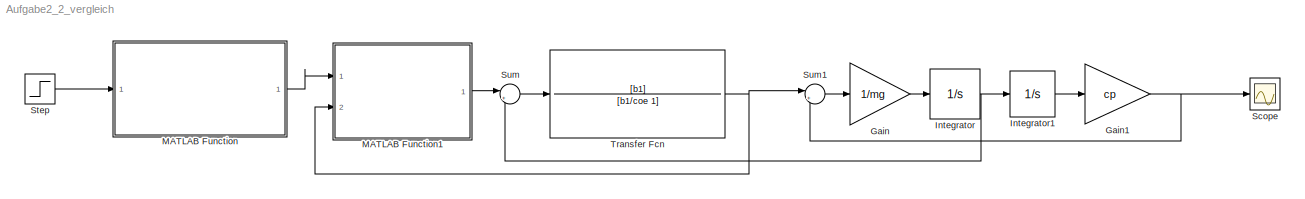
MODEL Aufgabe2_2_vergleich
KIND model
CONFIG InitFcn = run('Auf2_1_Initialisierung.m') % Initialisierung
BLOCK [Gain] Gain
  Gain = 1/mg
  OutDataTypeStr = Inherit: Inherit via internal rule
  ParamDataTypeStr = Inherit: Inherit via internal rule
  SID = 15
  SaturateOnIntegerOverflow = off
BLOCK [Gain] Gain1
  Gain = cp
  OutDataTypeStr = Inherit: Inherit via internal rule
  ParamDataTypeStr = Inherit: Inherit via internal rule
  SID = 18
  SaturateOnIntegerOverflow = off
BLOCK [Integrator] Integrator
  Ports = [1, 1]
  SID = 16
BLOCK [Integrator] Integrator1
  Ports = [1, 1]
  SID = 17
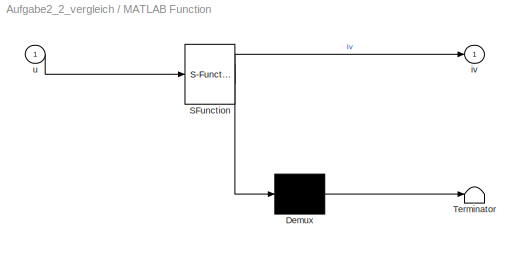
BLOCK [SubSystem] MATLAB Function
  ErrorFcn = Stateflow.Translate.translate
  PermitHierarchicalResolution = ExplicitOnly
  Ports = [1, 1]
  RequestExecContextInheritance = off
  SFBlockType = MATLAB Function
  SID = 11
  TreatAsAtomicUnit = on
BLOCK [Demux] MATLAB Function/ Demux 
  Outputs = 1
  Ports = [1, 1]
  SID = 11::20
BLOCK [S-Function] MATLAB Function/ SFunction 
  EnableBusSupport = on
  FunctionName = sf_sfun
  PortCounts = [1 2]
  Ports = [1, 2]
  SFcnIsStateOwnerBlock = off
  SFunctionDeploymentMode = off
  SID = 11::19
  Tag = Stateflow S-Function Aufgabe2_2_vergleich 2
BLOCK [Terminator] MATLAB Function/ Terminator 
  SID = 11::21
BLOCK [Outport] MATLAB Function/iv
  IconDisplay = Port number
  SID = 11::5
BLOCK [Inport] MATLAB Function/u
  IconDisplay = Port number
  SID = 11::1
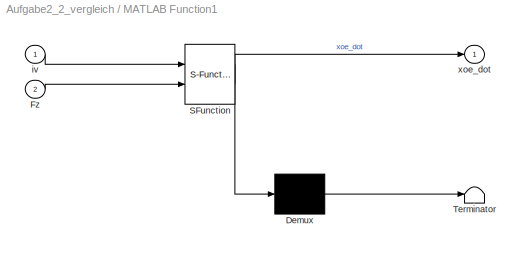
BLOCK [SubSystem] MATLAB Function1
  ErrorFcn = Stateflow.Translate.translate
  PermitHierarchicalResolution = ExplicitOnly
  Ports = [2, 1]
  RequestExecContextInheritance = off
  SFBlockType = MATLAB Function
  SID = 12
  TreatAsAtomicUnit = on
BLOCK [Demux] MATLAB Function1/ Demux 
  Outputs = 1
  Ports = [1, 1]
  SID = 12::20
BLOCK [S-Function] MATLAB Function1/ SFunction 
  EnableBusSupport = on
  FunctionName = sf_sfun
  PortCounts = [2 2]
  Ports = [2, 2]
  SFcnIsStateOwnerBlock = off
  SFunctionDeploymentMode = off
  SID = 12::19
  Tag = Stateflow S-Function Aufgabe2_2_vergleich 1
BLOCK [Terminator] MATLAB Function1/ Terminator 
  SID = 12::21
BLOCK [Inport] MATLAB Function1/Fz
  IconDisplay = Port number
  Port = 2
  SID = 12::22
BLOCK [Inport] MATLAB Function1/iv
  IconDisplay = Port number
  SID = 12::1
BLOCK [Outport] MATLAB Function1/xoe_dot
  IconDisplay = Port number
  SID = 12::5
BLOCK [Scope] Scope
  Floating = off
  NumInputPorts = 1
  Ports = [1]
  SID = 28
  ScopeSpecificationString = Simulink.scopes.TimeScopeBlockCfg('CurrentConfiguration', extmgr.ConfigurationSet(extmgr.Configuration('Core','General UI',true),extmgr.Configuration('Core','Source UI',true),extmgr.Configuration('Sources','WiredSimulink',true),extmgr.Configuration('Visuals','Time Domain',true,'SerializedDisplays',{struct('MinYLimReal','-12088.42813','MaxYLimReal','108795.85319','YLabelReal','','MinYLimMag','   0....<+1457ch>
BLOCK [Step] Step
  SID = 29
  SampleTime = 0
  Time = 0
BLOCK [Sum] Sum
  IconShape = round
  InputSameDT = off
  Inputs = |+-
  OutDataTypeStr = Inherit: Inherit via internal rule
  Ports = [2, 1]
  SID = 13
  SaturateOnIntegerOverflow = off
BLOCK [Sum] Sum1
  IconShape = round
  InputSameDT = off
  Inputs = |+-
  OutDataTypeStr = Inherit: Inherit via internal rule
  Ports = [2, 1]
  SID = 14
  SaturateOnIntegerOverflow = off
BLOCK [TransferFcn] Transfer Fcn
  Denominator = [b1/coe 1]
  Numerator = [b1]
  SID = 5
NET Gain1:1 -> Scope:1, Sum1:2
LINE Gain:1 -> Integrator:1
LINE Integrator1:1 -> Gain1:1
NET Integrator:1 -> Integrator1:1, Sum:2
LINE MATLAB Function/ Demux :1 -> MATLAB Function/ Terminator :1
LINE MATLAB Function/ SFunction :1 -> MATLAB Function/ Demux :1
LINE MATLAB Function/ SFunction :2 -> MATLAB Function/iv:1
LINE MATLAB Function/u:1 -> MATLAB Function/ SFunction :1
LINE MATLAB Function1/ Demux :1 -> MATLAB Function1/ Terminator :1
LINE MATLAB Function1/ SFunction :1 -> MATLAB Function1/ Demux :1
LINE MATLAB Function1/ SFunction :2 -> MATLAB Function1/xoe_dot:1
LINE MATLAB Function1/Fz:1 -> MATLAB Function1/ SFunction :2
LINE MATLAB Function1/iv:1 -> MATLAB Function1/ SFunction :1
LINE MATLAB Function1:1 -> Sum:1
LINE MATLAB Function:1 -> MATLAB Function1:1
LINE Step:1 -> MATLAB Function:1
LINE Sum1:1 -> Gain:1
LINE Sum:1 -> Transfer Fcn:1
NET Transfer Fcn:1 -> MATLAB Function1:2, Sum1:1
note: NET lines group one-source signal fan-out (src -> all destinations, sorted); 1:1 wires keep LINE
CHART MATLAB Function1 states=1 transitions=1
  STATE_LABEL 'eML_blk_kernel()'
CHART MATLAB Function states=1 transitions=1
  STATE_LABEL 'eML_blk_kernel()'
